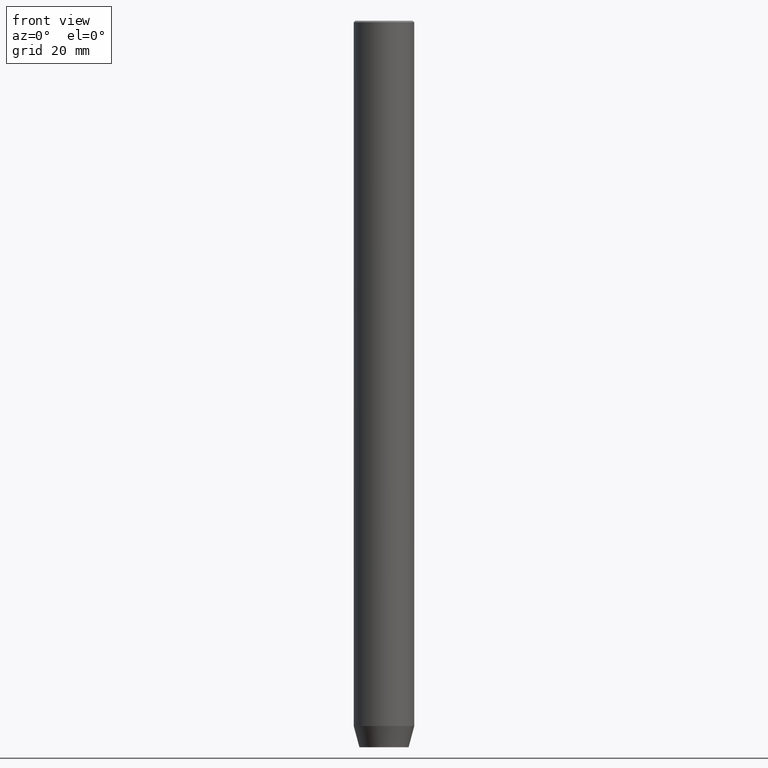
[diagram: clean part render]
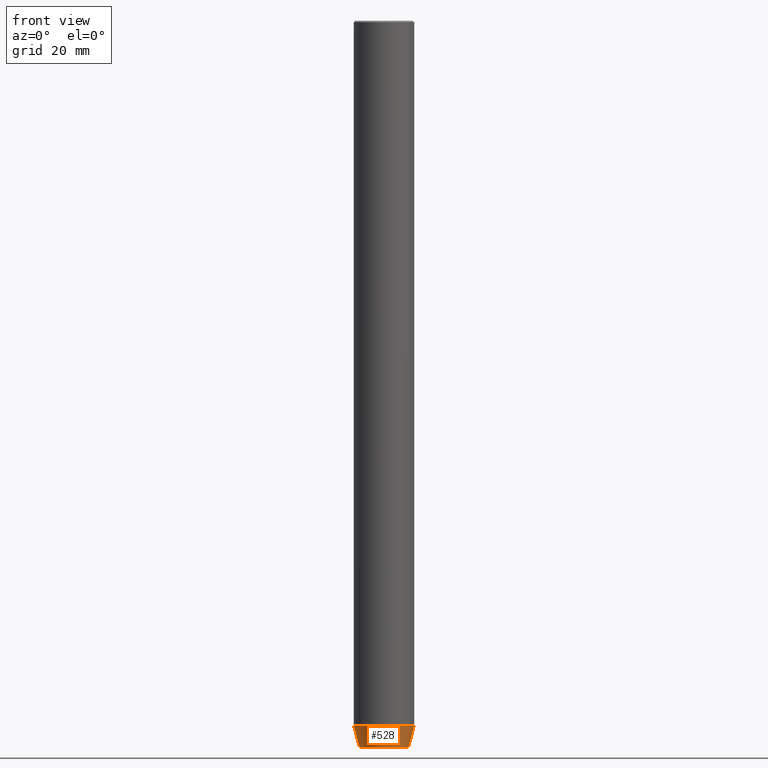
[diagram: same view with one face highlighted and labeled with its STEP entity id]
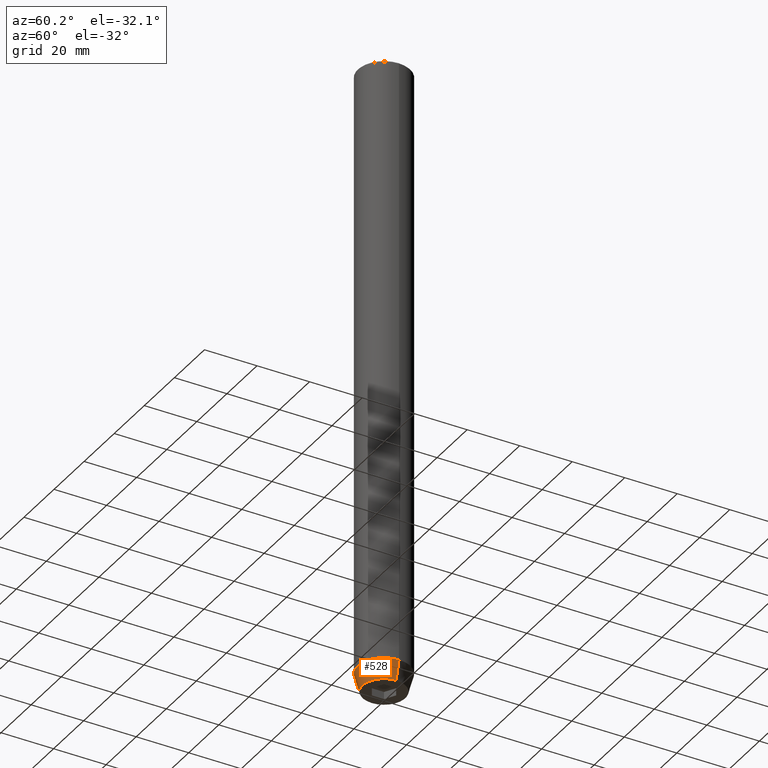
[diagram: same view with one face highlighted and labeled with its STEP entity id]
A machine part, front view. The second image highlights one B-rep face of the part: STEP entity #528.
A second angle (auxiliary view) of the same face is appended — the face is thin or edge-on in the first view.
In plain terms, the highlighted conical surface has half-angle 15 deg.
Its self-contained STEP definition (entity closure, byte-faithful):
#2 = CARTESIAN_POINT ( 'NONE',  ( -10.00000000000000000, 1.224646799147353256E-15, -232.9999999999999716 ) ) ;
#44 = VECTOR ( 'NONE', #457, 1000.000000000000114 ) ;
#68 = VERTEX_POINT ( 'NONE', #397 ) ;
#84 = AXIS2_PLACEMENT_3D ( 'NONE', #472, #477, #250 ) ;
#102 = DIRECTION ( 'NONE',  ( -0.000000000000000000, -0.000000000000000000, 1.000000000000000000 ) ) ;
#107 = ORIENTED_EDGE ( 'NONE', *, *, #565, .T. ) ;
#165 = CARTESIAN_POINT ( 'NONE',  ( -8.124355652982137244, 1.109796706851640556E-15, -240.0000000000000000 ) ) ;
#191 = CARTESIAN_POINT ( 'NONE',  ( 8.124355652982137244, 0.000000000000000000, -240.0000000000000000 ) ) ;
#210 = CARTESIAN_POINT ( 'NONE',  ( 10.00000000000000000, 0.000000000000000000, -232.9999999999999716 ) ) ;
#250 = DIRECTION ( 'NONE',  ( 1.000000000000000000, 0.000000000000000000, 0.000000000000000000 ) ) ;
#268 = CIRCLE ( 'NONE', #586, 8.124355652982137244 ) ;
#288 = EDGE_CURVE ( 'NONE', #389, #68, #321, .T. ) ;
#298 = ORIENTED_EDGE ( 'NONE', *, *, #288, .F. ) ;
#300 = FACE_OUTER_BOUND ( 'NONE', #522, .T. ) ;
#319 = CIRCLE ( 'NONE', #587, 10.00000000000000000 ) ;
#321 = LINE ( 'NONE', #2, #44 ) ;
#339 = VECTOR ( 'NONE', #388, 1000.000000000000114 ) ;
#346 = CONICAL_SURFACE ( 'NONE', #84, 10.00000000000000000, 0.2617993877991497964 ) ;
#388 = DIRECTION ( 'NONE',  ( 0.2588190451025210725, 0.000000000000000000, 0.9659258262890680902 ) ) ;
#389 = VERTEX_POINT ( 'NONE', #165 ) ;
#397 = CARTESIAN_POINT ( 'NONE',  ( -10.00000000000000000, 1.224646799147353256E-15, -232.9999999999999716 ) ) ;
#404 = ORIENTED_EDGE ( 'NONE', *, *, #517, .T. ) ;
#413 = ORIENTED_EDGE ( 'NONE', *, *, #544, .F. ) ;
#432 = VERTEX_POINT ( 'NONE', #191 ) ;
#444 = CARTESIAN_POINT ( 'NONE',  ( 10.00000000000000000, 0.000000000000000000, -232.9999999999999716 ) ) ;
#457 = DIRECTION ( 'NONE',  ( -0.2588190451025210725, 3.169619151431769255E-17, 0.9659258262890680902 ) ) ;
#465 = DIRECTION ( 'NONE',  ( 1.000000000000000000, 0.000000000000000000, 0.000000000000000000 ) ) ;
#472 = CARTESIAN_POINT ( 'NONE',  ( 0.000000000000000000, 0.000000000000000000, -232.9999999999999716 ) ) ;
#477 = DIRECTION ( 'NONE',  ( -0.000000000000000000, -0.000000000000000000, 1.000000000000000000 ) ) ;
#491 = LINE ( 'NONE', #210, #339 ) ;
#497 = DIRECTION ( 'NONE',  ( 1.000000000000000000, 0.000000000000000000, 0.000000000000000000 ) ) ;
#517 = EDGE_CURVE ( 'NONE', #389, #432, #268, .T. ) ;
#522 = EDGE_LOOP ( 'NONE', ( #298, #404, #107, #413 ) ) ;
#524 = CARTESIAN_POINT ( 'NONE',  ( 0.000000000000000000, 0.000000000000000000, -240.0000000000000000 ) ) ;
#528 = ADVANCED_FACE ( 'NONE', ( #300 ), #346, .T. ) ;
#536 = CARTESIAN_POINT ( 'NONE',  ( 0.000000000000000000, 0.000000000000000000, -232.9999999999999716 ) ) ;
#540 = DIRECTION ( 'NONE',  ( -0.000000000000000000, -0.000000000000000000, 1.000000000000000000 ) ) ;
#544 = EDGE_CURVE ( 'NONE', #68, #566, #319, .T. ) ;
#565 = EDGE_CURVE ( 'NONE', #432, #566, #491, .T. ) ;
#566 = VERTEX_POINT ( 'NONE', #444 ) ;
#586 = AXIS2_PLACEMENT_3D ( 'NONE', #524, #102, #465 ) ;
#587 = AXIS2_PLACEMENT_3D ( 'NONE', #536, #540, #497 ) ;